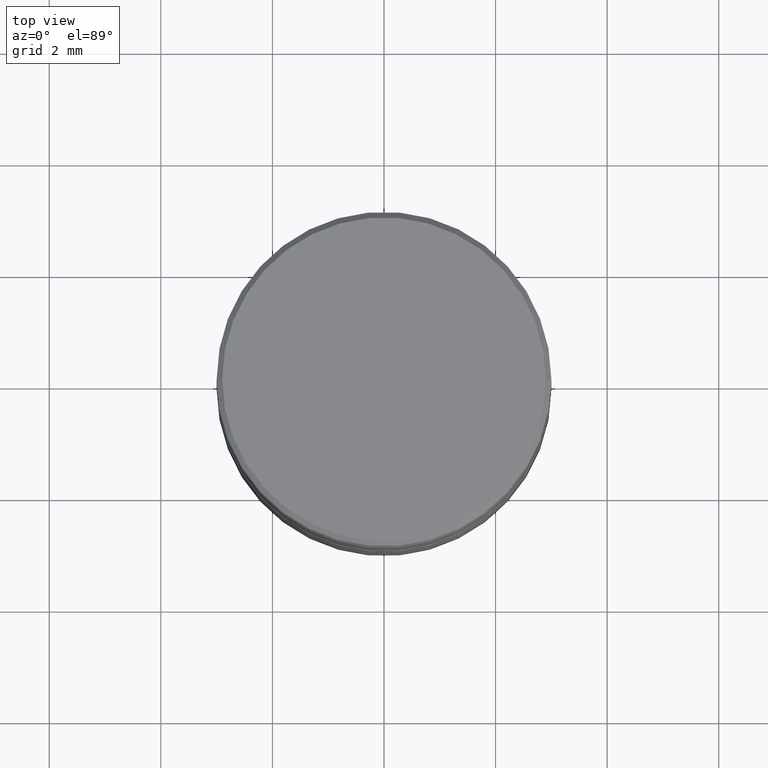
[diagram: clean part render]
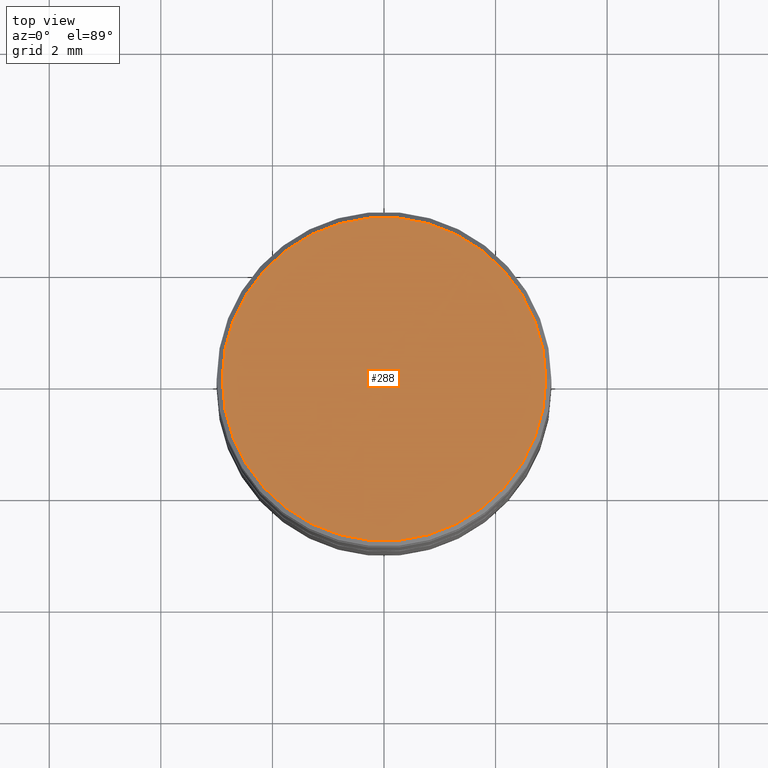
[diagram: same view with one face highlighted and labeled with its STEP entity id]
A machine part, top view. The second image highlights one B-rep face of the part: STEP entity #288.
In plain terms, the highlighted planar face has unit normal (0, -0, 1).
Its self-contained STEP definition (entity closure, byte-faithful):
#83 = CARTESIAN_POINT ( 'NONE',  ( 2.900000000000001688, 3.612708057484692590E-16, 0.000000000000000000 ) ) ;
#96 = DIRECTION ( 'NONE',  ( -0.000000000000000000, -0.000000000000000000, 1.000000000000000000 ) ) ;
#116 = ORIENTED_EDGE ( 'NONE', *, *, #650, .T. ) ;
#164 = VERTEX_POINT ( 'NONE', #83 ) ;
#177 = VERTEX_POINT ( 'NONE', #266 ) ;
#232 = ORIENTED_EDGE ( 'NONE', *, *, #945, .T. ) ;
#241 = AXIS2_PLACEMENT_3D ( 'NONE', #1016, #563, #570 ) ;
#263 = AXIS2_PLACEMENT_3D ( 'NONE', #992, #96, #463 ) ;
#266 = CARTESIAN_POINT ( 'NONE',  ( -2.900000000000001688, 0.000000000000000000, 0.000000000000000000 ) ) ;
#288 = ADVANCED_FACE ( 'NONE', ( #293 ), #1007, .T. ) ;
#293 = FACE_OUTER_BOUND ( 'NONE', #930, .T. ) ;
#335 = CIRCLE ( 'NONE', #263, 2.900000000000001688 ) ;
#371 = DIRECTION ( 'NONE',  ( -0.000000000000000000, -0.000000000000000000, 1.000000000000000000 ) ) ;
#463 = DIRECTION ( 'NONE',  ( 1.000000000000000000, 0.000000000000000000, 0.000000000000000000 ) ) ;
#563 = DIRECTION ( 'NONE',  ( 0.000000000000000000, -0.000000000000000000, 1.000000000000000000 ) ) ;
#570 = DIRECTION ( 'NONE',  ( 1.000000000000000000, 0.000000000000000000, 0.000000000000000000 ) ) ;
#622 = CIRCLE ( 'NONE', #1106, 2.900000000000001688 ) ;
#650 = EDGE_CURVE ( 'NONE', #164, #177, #622, .T. ) ;
#831 = CARTESIAN_POINT ( 'NONE',  ( 0.000000000000000000, 0.000000000000000000, 0.000000000000000000 ) ) ;
#930 = EDGE_LOOP ( 'NONE', ( #232, #116 ) ) ;
#945 = EDGE_CURVE ( 'NONE', #177, #164, #335, .T. ) ;
#992 = CARTESIAN_POINT ( 'NONE',  ( 0.000000000000000000, 0.000000000000000000, 0.000000000000000000 ) ) ;
#1007 = PLANE ( 'NONE',  #241 ) ;
#1016 = CARTESIAN_POINT ( 'NONE',  ( 0.000000000000000000, 0.000000000000000000, 0.000000000000000000 ) ) ;
#1080 = DIRECTION ( 'NONE',  ( 1.000000000000000000, 0.000000000000000000, 0.000000000000000000 ) ) ;
#1106 = AXIS2_PLACEMENT_3D ( 'NONE', #831, #371, #1080 ) ;